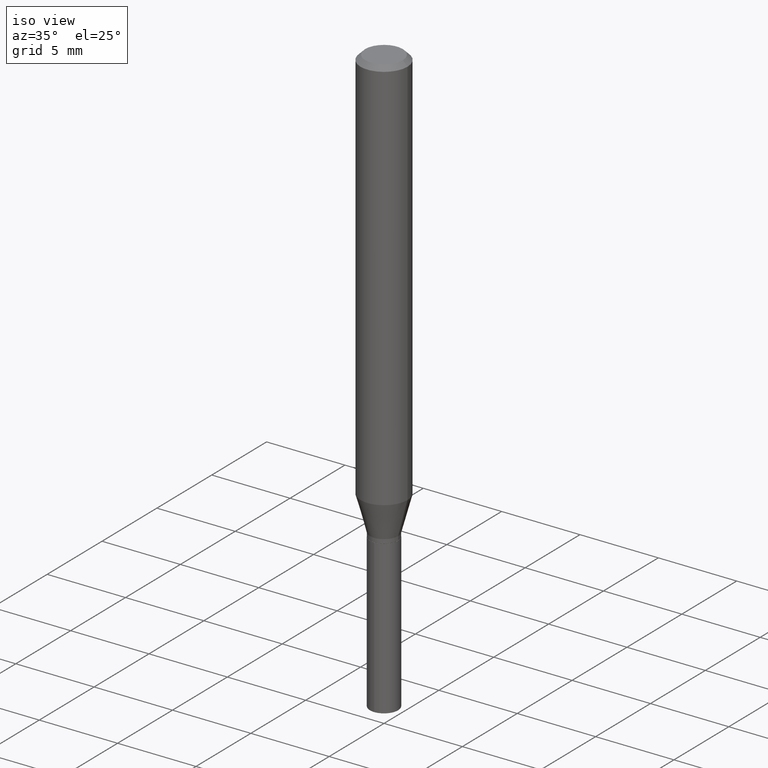
[diagram: clean part render]
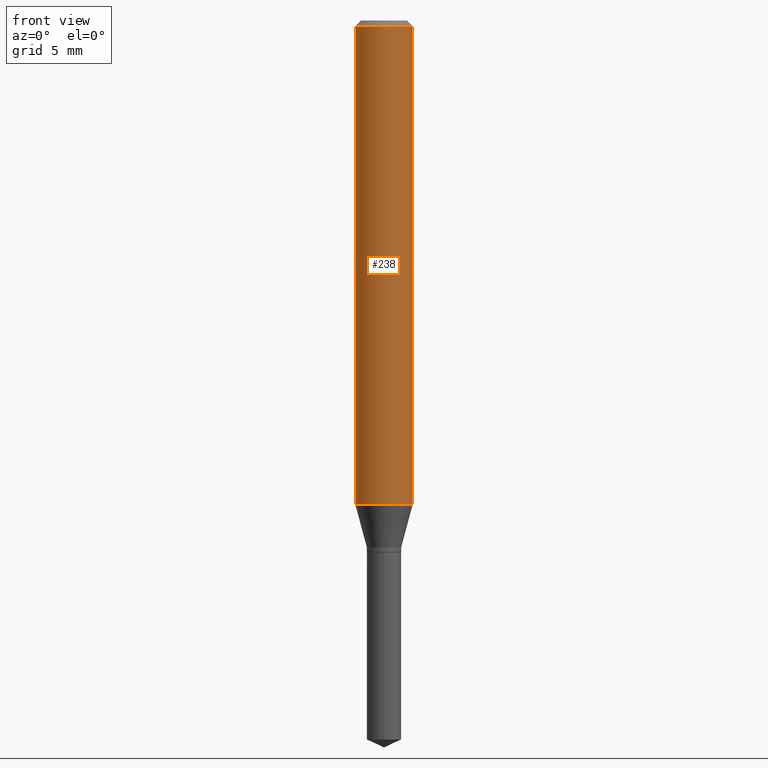
[diagram: tour spotlight — one face highlighted and labeled with its STEP entity id]
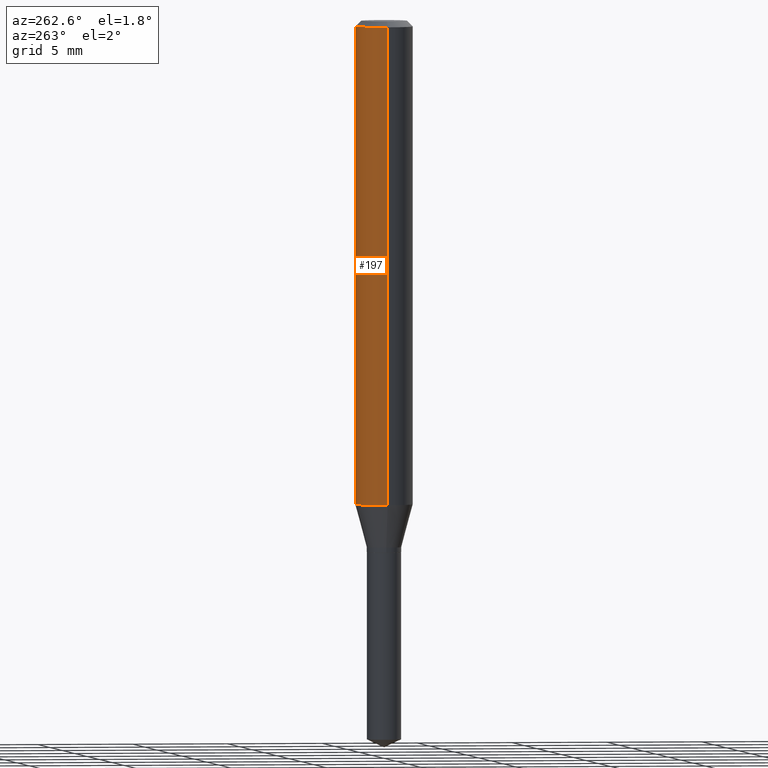
[diagram: tour spotlight — one face highlighted and labeled with its STEP entity id]
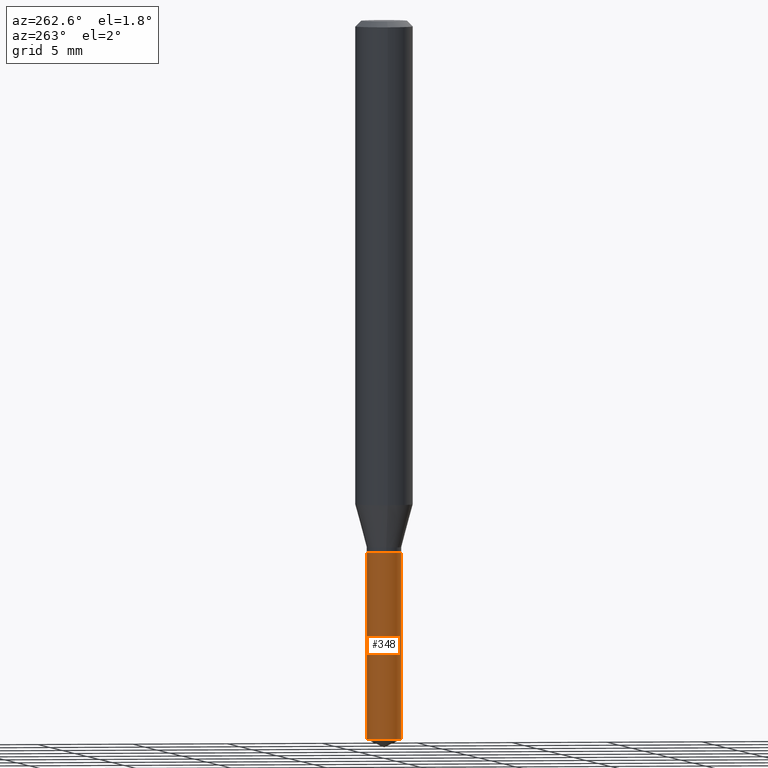
[diagram: tour spotlight — one face highlighted and labeled with its STEP entity id]
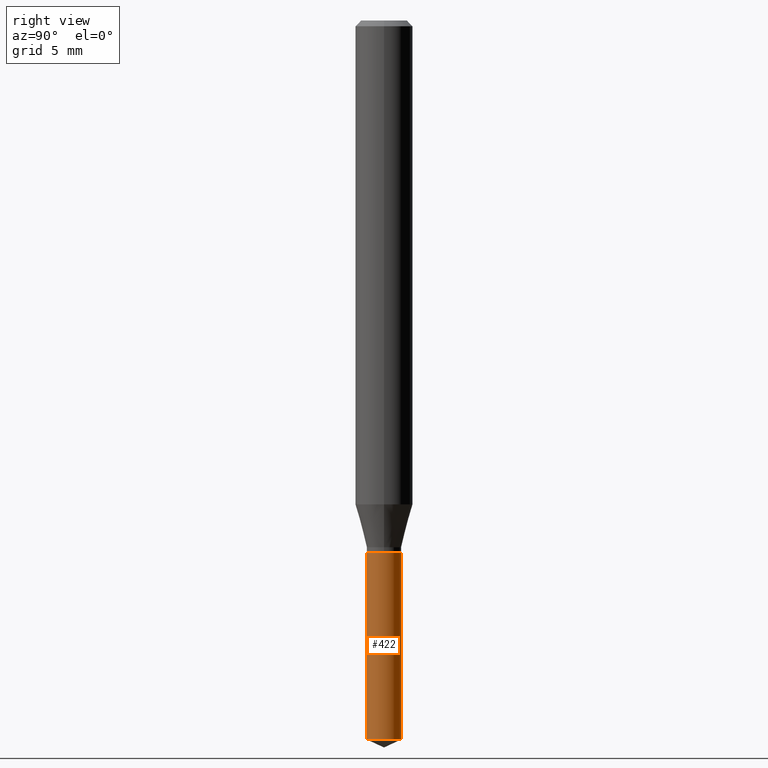
[diagram: tour spotlight — one face highlighted and labeled with its STEP entity id]
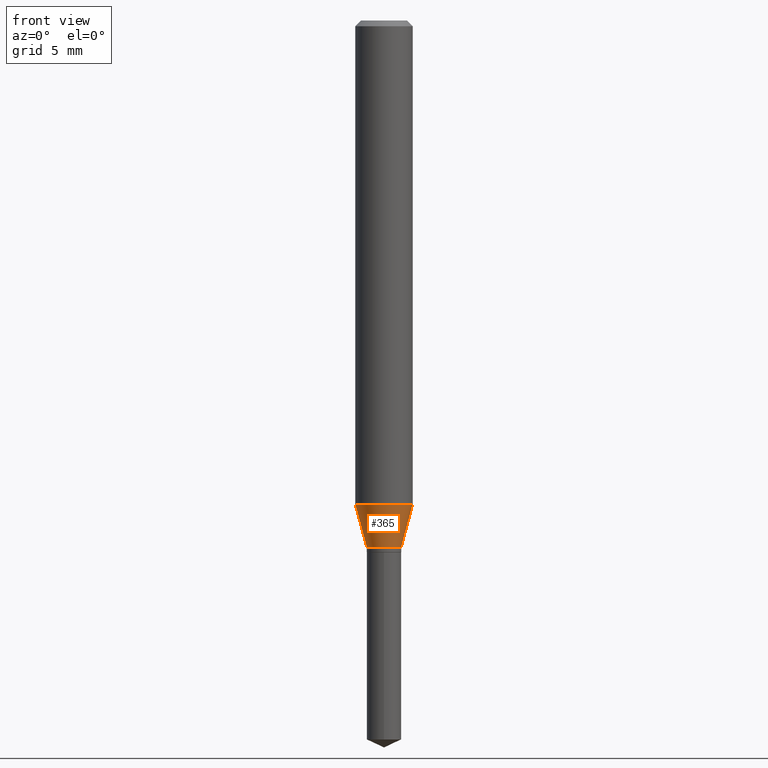
[diagram: tour spotlight — one face highlighted and labeled with its STEP entity id]
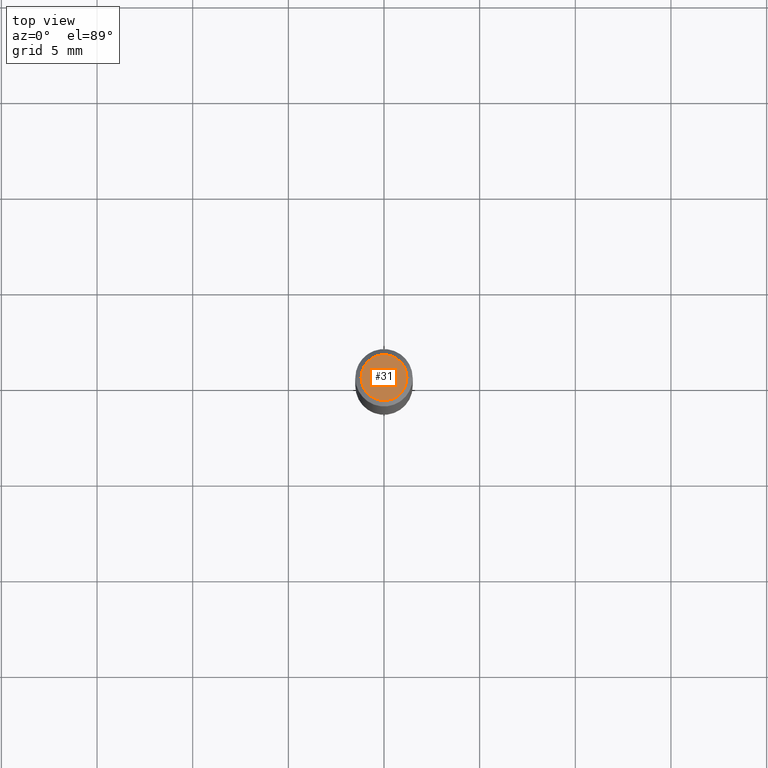
[diagram: tour spotlight — one face highlighted and labeled with its STEP entity id]
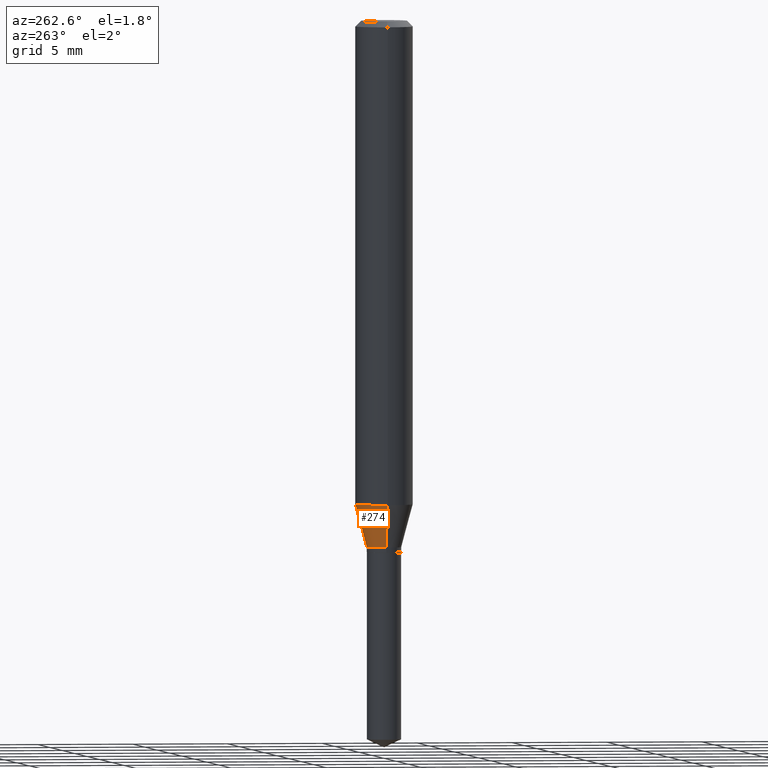
[diagram: tour spotlight — one face highlighted and labeled with its STEP entity id]
A machine part: a face-by-face anatomy tour. The part has 17 B-rep faces; the first image is the clean iso view, then the 7 largest visible faces are spotlighted one at a time (largest first), each with its STEP entity span.

Face 1 — front view, entity #238. In plain terms, the highlighted cylindrical surface (edge-blend (fillet) strip) has radius 1.4999 mm, axis along (-0, 0, 1).
Definition (entity closure, byte-faithful):
#7 = EDGE_CURVE ( 'NONE', #326, #285, #112, .T. ) ;
#38 = AXIS2_PLACEMENT_3D ( 'NONE', #455, #118, #305 ) ;
#47 = CIRCLE ( 'NONE', #121, 0.05905000000000011628 ) ;
#60 = AXIS2_PLACEMENT_3D ( 'NONE', #322, #159, #126 ) ;
#63 = CARTESIAN_POINT ( 'NONE',  ( 0.05905000000000006077, -4.123439461173744764E-16, 2.879382386107503023E-30 ) ) ;
#71 = CARTESIAN_POINT ( 'NONE',  ( -0.05905000000000006077, 4.195754854663395916E-16, -2.904631170795524694E-30 ) ) ;
#78 = DIRECTION ( 'NONE',  ( -2.445468806185136597E-29, 3.491481338843145583E-15, 1.000000000000000000 ) ) ;
#87 = CARTESIAN_POINT ( 'NONE',  ( -0.05905000000000011628, -3.057324034000050775E-15, -0.9958236009413741208 ) ) ;
#105 = DIRECTION ( 'NONE',  ( -2.445468806185136877E-29, 3.491481338843145188E-15, 1.000000000000000000 ) ) ;
#112 = LINE ( 'NONE', #71, #217 ) ;
#115 = VERTEX_POINT ( 'NONE', #295 ) ;
#117 = DIRECTION ( 'NONE',  ( -2.445468806185136877E-29, 3.491481338843145188E-15, 1.000000000000000000 ) ) ;
#118 = DIRECTION ( 'NONE',  ( -2.445468806185136597E-29, 3.491481338843145583E-15, 1.000000000000000000 ) ) ;
#121 = AXIS2_PLACEMENT_3D ( 'NONE', #207, #78, #184 ) ;
#126 = DIRECTION ( 'NONE',  ( 1.000000000000000000, -6.982962677686266711E-15, 4.876176775795935793E-29 ) ) ;
#133 = VECTOR ( 'NONE', #117, 39.37007874015748143 ) ;
#149 = VERTEX_POINT ( 'NONE', #473 ) ;
#159 = DIRECTION ( 'NONE',  ( -2.445468806185136597E-29, 3.491481338843145583E-15, 1.000000000000000000 ) ) ;
#170 = ORIENTED_EDGE ( 'NONE', *, *, #248, .T. ) ;
#175 = FACE_OUTER_BOUND ( 'NONE', #387, .T. ) ;
#184 = DIRECTION ( 'NONE',  ( 1.000000000000000000, -6.982962677686266711E-15, 0.000000000000000000 ) ) ;
#207 = CARTESIAN_POINT ( 'NONE',  ( 2.435255552565086005E-29, -3.476899519466391057E-15, -0.9958236009413741208 ) ) ;
#217 = VECTOR ( 'NONE', #105, 39.37007874015748143 ) ;
#238 = ADVANCED_FACE ( 'NONE', ( #175 ), #390, .T. ) ;
#248 = EDGE_CURVE ( 'NONE', #326, #115, #47, .T. ) ;
#250 = CIRCLE ( 'NONE', #38, 0.05904999999999999832 ) ;
#277 = EDGE_CURVE ( 'NONE', #285, #149, #250, .T. ) ;
#285 = VERTEX_POINT ( 'NONE', #420 ) ;
#295 = CARTESIAN_POINT ( 'NONE',  ( 0.05905000000000011628, -3.889243465583765977E-15, -0.9958236009413741208 ) ) ;
#305 = DIRECTION ( 'NONE',  ( 1.000000000000000000, -6.982962677686266711E-15, 0.000000000000000000 ) ) ;
#322 = CARTESIAN_POINT ( 'NONE',  ( 0.000000000000000000, 0.000000000000000000, 0.000000000000000000 ) ) ;
#326 = VERTEX_POINT ( 'NONE', #87 ) ;
#332 = LINE ( 'NONE', #63, #133 ) ;
#342 = ORIENTED_EDGE ( 'NONE', *, *, #277, .F. ) ;
#360 = ORIENTED_EDGE ( 'NONE', *, *, #7, .F. ) ;
#387 = EDGE_LOOP ( 'NONE', ( #360, #170, #405, #342 ) ) ;
#390 = CYLINDRICAL_SURFACE ( 'NONE', #60, 0.05905000000000006077 ) ;
#405 = ORIENTED_EDGE ( 'NONE', *, *, #415, .T. ) ;
#415 = EDGE_CURVE ( 'NONE', #115, #149, #332, .T. ) ;
#420 = CARTESIAN_POINT ( 'NONE',  ( -0.05904999999999999832, -1.339491471572724111E-15, -0.01181000000000007218 ) ) ;
#455 = CARTESIAN_POINT ( 'NONE',  ( 2.888098660104664204E-31, -4.123439461173780263E-17, -0.01181000000000007218 ) ) ;
#473 = CARTESIAN_POINT ( 'NONE',  ( 0.05904999999999999832, -4.535783407291118600E-16, -0.01181000000000007218 ) ) ;

Face 2 — auxiliary view, entity #197. In plain terms, the highlighted cylindrical surface (edge-blend (fillet) strip) has radius 1.4999 mm, axis along (-0, 0, 1).
Definition (entity closure, byte-faithful):
#7 = EDGE_CURVE ( 'NONE', #326, #285, #112, .T. ) ;
#16 = CARTESIAN_POINT ( 'NONE',  ( 2.888098660104664204E-31, -4.123439461173780263E-17, -0.01181000000000007218 ) ) ;
#36 = DIRECTION ( 'NONE',  ( 1.000000000000000000, -6.982962677686266711E-15, 0.000000000000000000 ) ) ;
#52 = CARTESIAN_POINT ( 'NONE',  ( 2.435255552565086005E-29, -3.476899519466391057E-15, -0.9958236009413741208 ) ) ;
#62 = CIRCLE ( 'NONE', #438, 0.05904999999999999832 ) ;
#63 = CARTESIAN_POINT ( 'NONE',  ( 0.05905000000000006077, -4.123439461173744764E-16, 2.879382386107503023E-30 ) ) ;
#71 = CARTESIAN_POINT ( 'NONE',  ( -0.05905000000000006077, 4.195754854663395916E-16, -2.904631170795524694E-30 ) ) ;
#87 = CARTESIAN_POINT ( 'NONE',  ( -0.05905000000000011628, -3.057324034000050775E-15, -0.9958236009413741208 ) ) ;
#100 = ORIENTED_EDGE ( 'NONE', *, *, #7, .T. ) ;
#105 = DIRECTION ( 'NONE',  ( -2.445468806185136877E-29, 3.491481338843145188E-15, 1.000000000000000000 ) ) ;
#112 = LINE ( 'NONE', #71, #217 ) ;
#115 = VERTEX_POINT ( 'NONE', #295 ) ;
#117 = DIRECTION ( 'NONE',  ( -2.445468806185136877E-29, 3.491481338843145188E-15, 1.000000000000000000 ) ) ;
#133 = VECTOR ( 'NONE', #117, 39.37007874015748143 ) ;
#145 = AXIS2_PLACEMENT_3D ( 'NONE', #363, #172, #247 ) ;
#146 = ORIENTED_EDGE ( 'NONE', *, *, #415, .F. ) ;
#149 = VERTEX_POINT ( 'NONE', #473 ) ;
#167 = DIRECTION ( 'NONE',  ( -2.445468806185136597E-29, 3.491481338843145583E-15, 1.000000000000000000 ) ) ;
#172 = DIRECTION ( 'NONE',  ( -2.445468806185136597E-29, 3.491481338843145583E-15, 1.000000000000000000 ) ) ;
#173 = ORIENTED_EDGE ( 'NONE', *, *, #456, .F. ) ;
#197 = ADVANCED_FACE ( 'NONE', ( #289 ), #281, .T. ) ;
#208 = AXIS2_PLACEMENT_3D ( 'NONE', #52, #442, #361 ) ;
#217 = VECTOR ( 'NONE', #105, 39.37007874015748143 ) ;
#220 = EDGE_CURVE ( 'NONE', #115, #326, #428, .T. ) ;
#236 = ORIENTED_EDGE ( 'NONE', *, *, #220, .T. ) ;
#247 = DIRECTION ( 'NONE',  ( 1.000000000000000000, -6.982962677686266711E-15, 4.876176775795935793E-29 ) ) ;
#281 = CYLINDRICAL_SURFACE ( 'NONE', #145, 0.05905000000000006077 ) ;
#285 = VERTEX_POINT ( 'NONE', #420 ) ;
#289 = FACE_OUTER_BOUND ( 'NONE', #448, .T. ) ;
#295 = CARTESIAN_POINT ( 'NONE',  ( 0.05905000000000011628, -3.889243465583765977E-15, -0.9958236009413741208 ) ) ;
#326 = VERTEX_POINT ( 'NONE', #87 ) ;
#332 = LINE ( 'NONE', #63, #133 ) ;
#361 = DIRECTION ( 'NONE',  ( 1.000000000000000000, -6.982962677686266711E-15, 0.000000000000000000 ) ) ;
#363 = CARTESIAN_POINT ( 'NONE',  ( 0.000000000000000000, 0.000000000000000000, 0.000000000000000000 ) ) ;
#415 = EDGE_CURVE ( 'NONE', #115, #149, #332, .T. ) ;
#420 = CARTESIAN_POINT ( 'NONE',  ( -0.05904999999999999832, -1.339491471572724111E-15, -0.01181000000000007218 ) ) ;
#428 = CIRCLE ( 'NONE', #208, 0.05905000000000011628 ) ;
#438 = AXIS2_PLACEMENT_3D ( 'NONE', #16, #167, #36 ) ;
#442 = DIRECTION ( 'NONE',  ( -2.445468806185136597E-29, 3.491481338843145583E-15, 1.000000000000000000 ) ) ;
#448 = EDGE_LOOP ( 'NONE', ( #236, #100, #173, #146 ) ) ;
#456 = EDGE_CURVE ( 'NONE', #149, #285, #62, .T. ) ;
#473 = CARTESIAN_POINT ( 'NONE',  ( 0.05904999999999999832, -4.535783407291118600E-16, -0.01181000000000007218 ) ) ;

Face 3 — auxiliary view, entity #348. In plain terms, the highlighted cylindrical surface (edge-blend (fillet) strip) has radius 0.9004 mm, axis along (-0, 0, 1).
Definition (entity closure, byte-faithful):
#53 = DIRECTION ( 'NONE',  ( -2.445470214571802116E-29, 3.491479321953280158E-15, 1.000000000000000000 ) ) ;
#54 = VERTEX_POINT ( 'NONE', #336 ) ;
#61 = LINE ( 'NONE', #328, #139 ) ;
#75 = CIRCLE ( 'NONE', #116, 0.03545000000000000234 ) ;
#86 = CARTESIAN_POINT ( 'NONE',  ( 2.518873998269915736E-16, 0.03544999999999481899, -1.479569393518405329 ) ) ;
#116 = AXIS2_PLACEMENT_3D ( 'NONE', #161, #317, #230 ) ;
#139 = VECTOR ( 'NONE', #324, 39.37007874015748143 ) ;
#161 = CARTESIAN_POINT ( 'NONE',  ( 2.676565608369631794E-29, -3.821426325363822773E-15, -1.094499999999999806 ) ) ;
#171 = AXIS2_PLACEMENT_3D ( 'NONE', #306, #425, #394 ) ;
#187 = LINE ( 'NONE', #226, #465 ) ;
#188 = EDGE_CURVE ( 'NONE', #273, #54, #61, .T. ) ;
#199 = DIRECTION ( 'NONE',  ( -6.982962677686265922E-15, -1.000000000000000000, 0.000000000000000000 ) ) ;
#222 = CARTESIAN_POINT ( 'NONE',  ( -2.475460269239418917E-16, -0.03545000000000515794, -1.479569393518405329 ) ) ;
#226 = CARTESIAN_POINT ( 'NONE',  ( 2.518873998269822552E-16, 0.03544999999999617901, -1.094500000000000028 ) ) ;
#230 = DIRECTION ( 'NONE',  ( -6.982962677686265922E-15, -1.000000000000000000, 3.853100132107564390E-15 ) ) ;
#262 = AXIS2_PLACEMENT_3D ( 'NONE', #484, #53, #199 ) ;
#266 = EDGE_LOOP ( 'NONE', ( #287, #323, #375, #362 ) ) ;
#273 = VERTEX_POINT ( 'NONE', #222 ) ;
#287 = ORIENTED_EDGE ( 'NONE', *, *, #485, .F. ) ;
#306 = CARTESIAN_POINT ( 'NONE',  ( 2.676565608369631794E-29, -3.821426325363822773E-15, -1.094499999999999806 ) ) ;
#312 = FACE_OUTER_BOUND ( 'NONE', #266, .T. ) ;
#317 = DIRECTION ( 'NONE',  ( -2.445470214571802116E-29, 3.491479321953280158E-15, 1.000000000000000000 ) ) ;
#323 = ORIENTED_EDGE ( 'NONE', *, *, #445, .T. ) ;
#324 = DIRECTION ( 'NONE',  ( -2.445470214571802396E-29, 3.491479321953280158E-15, 1.000000000000000000 ) ) ;
#328 = CARTESIAN_POINT ( 'NONE',  ( -2.475460269239513581E-16, -0.03545000000000382567, -1.094499999999999806 ) ) ;
#329 = EDGE_CURVE ( 'NONE', #434, #54, #75, .T. ) ;
#331 = CARTESIAN_POINT ( 'NONE',  ( 2.518873998269917215E-16, 0.03544999999999617901, -1.094500000000000028 ) ) ;
#336 = CARTESIAN_POINT ( 'NONE',  ( -2.475460269239513581E-16, -0.03545000000000382567, -1.094499999999999806 ) ) ;
#348 = ADVANCED_FACE ( 'NONE', ( #312 ), #459, .T. ) ;
#362 = ORIENTED_EDGE ( 'NONE', *, *, #329, .F. ) ;
#375 = ORIENTED_EDGE ( 'NONE', *, *, #188, .T. ) ;
#394 = DIRECTION ( 'NONE',  ( -6.982962677686265922E-15, -1.000000000000000000, 3.853100132107564390E-15 ) ) ;
#425 = DIRECTION ( 'NONE',  ( -2.445470214571802116E-29, 3.491479321953280158E-15, 1.000000000000000000 ) ) ;
#434 = VERTEX_POINT ( 'NONE', #331 ) ;
#445 = EDGE_CURVE ( 'NONE', #463, #273, #479, .T. ) ;
#450 = DIRECTION ( 'NONE',  ( -2.445470214571802396E-29, 3.491479321953280158E-15, 1.000000000000000000 ) ) ;
#459 = CYLINDRICAL_SURFACE ( 'NONE', #171, 0.03545000000000000234 ) ;
#463 = VERTEX_POINT ( 'NONE', #86 ) ;
#465 = VECTOR ( 'NONE', #450, 39.37007874015748143 ) ;
#479 = CIRCLE ( 'NONE', #262, 0.03545000000000000234 ) ;
#484 = CARTESIAN_POINT ( 'NONE',  ( 3.618241340762121039E-29, -5.165888150350425771E-15, -1.479569393518405329 ) ) ;
#485 = EDGE_CURVE ( 'NONE', #463, #434, #187, .T. ) ;

Face 4 — right view, entity #422. In plain terms, the highlighted cylindrical surface (edge-blend (fillet) strip) has radius 0.9004 mm, axis along (-0, 0, 1).
Definition (entity closure, byte-faithful):
#9 = AXIS2_PLACEMENT_3D ( 'NONE', #26, #404, #441 ) ;
#26 = CARTESIAN_POINT ( 'NONE',  ( 3.618241340762121039E-29, -5.165888150350425771E-15, -1.479569393518405329 ) ) ;
#42 = CARTESIAN_POINT ( 'NONE',  ( 2.676565608369631794E-29, -3.821426325363822773E-15, -1.094499999999999806 ) ) ;
#46 = EDGE_CURVE ( 'NONE', #273, #463, #464, .T. ) ;
#54 = VERTEX_POINT ( 'NONE', #336 ) ;
#61 = LINE ( 'NONE', #328, #139 ) ;
#85 = AXIS2_PLACEMENT_3D ( 'NONE', #137, #264, #414 ) ;
#86 = CARTESIAN_POINT ( 'NONE',  ( 2.518873998269915736E-16, 0.03544999999999481899, -1.479569393518405329 ) ) ;
#137 = CARTESIAN_POINT ( 'NONE',  ( 2.676565608369631794E-29, -3.821426325363822773E-15, -1.094499999999999806 ) ) ;
#139 = VECTOR ( 'NONE', #324, 39.37007874015748143 ) ;
#154 = DIRECTION ( 'NONE',  ( -2.445470214571802116E-29, 3.491479321953280158E-15, 1.000000000000000000 ) ) ;
#156 = DIRECTION ( 'NONE',  ( -6.982962677686265922E-15, -1.000000000000000000, 3.853100132107564390E-15 ) ) ;
#187 = LINE ( 'NONE', #226, #465 ) ;
#188 = EDGE_CURVE ( 'NONE', #273, #54, #61, .T. ) ;
#215 = CYLINDRICAL_SURFACE ( 'NONE', #382, 0.03545000000000000234 ) ;
#222 = CARTESIAN_POINT ( 'NONE',  ( -2.475460269239418917E-16, -0.03545000000000515794, -1.479569393518405329 ) ) ;
#224 = ORIENTED_EDGE ( 'NONE', *, *, #188, .F. ) ;
#226 = CARTESIAN_POINT ( 'NONE',  ( 2.518873998269822552E-16, 0.03544999999999617901, -1.094500000000000028 ) ) ;
#249 = FACE_OUTER_BOUND ( 'NONE', #480, .T. ) ;
#264 = DIRECTION ( 'NONE',  ( -2.445470214571802116E-29, 3.491479321953280158E-15, 1.000000000000000000 ) ) ;
#273 = VERTEX_POINT ( 'NONE', #222 ) ;
#324 = DIRECTION ( 'NONE',  ( -2.445470214571802396E-29, 3.491479321953280158E-15, 1.000000000000000000 ) ) ;
#328 = CARTESIAN_POINT ( 'NONE',  ( -2.475460269239513581E-16, -0.03545000000000382567, -1.094499999999999806 ) ) ;
#331 = CARTESIAN_POINT ( 'NONE',  ( 2.518873998269917215E-16, 0.03544999999999617901, -1.094500000000000028 ) ) ;
#336 = CARTESIAN_POINT ( 'NONE',  ( -2.475460269239513581E-16, -0.03545000000000382567, -1.094499999999999806 ) ) ;
#347 = EDGE_CURVE ( 'NONE', #54, #434, #437, .T. ) ;
#358 = ORIENTED_EDGE ( 'NONE', *, *, #347, .F. ) ;
#382 = AXIS2_PLACEMENT_3D ( 'NONE', #42, #154, #156 ) ;
#404 = DIRECTION ( 'NONE',  ( -2.445470214571802116E-29, 3.491479321953280158E-15, 1.000000000000000000 ) ) ;
#414 = DIRECTION ( 'NONE',  ( -6.982962677686265922E-15, -1.000000000000000000, 3.853100132107564390E-15 ) ) ;
#416 = ORIENTED_EDGE ( 'NONE', *, *, #46, .T. ) ;
#422 = ADVANCED_FACE ( 'NONE', ( #249 ), #215, .T. ) ;
#434 = VERTEX_POINT ( 'NONE', #331 ) ;
#437 = CIRCLE ( 'NONE', #85, 0.03545000000000000234 ) ;
#441 = DIRECTION ( 'NONE',  ( -6.982962677686265922E-15, -1.000000000000000000, 0.000000000000000000 ) ) ;
#450 = DIRECTION ( 'NONE',  ( -2.445470214571802396E-29, 3.491479321953280158E-15, 1.000000000000000000 ) ) ;
#463 = VERTEX_POINT ( 'NONE', #86 ) ;
#464 = CIRCLE ( 'NONE', #9, 0.03545000000000000234 ) ;
#465 = VECTOR ( 'NONE', #450, 39.37007874015748143 ) ;
#467 = ORIENTED_EDGE ( 'NONE', *, *, #485, .T. ) ;
#480 = EDGE_LOOP ( 'NONE', ( #416, #467, #358, #224 ) ) ;
#485 = EDGE_CURVE ( 'NONE', #463, #434, #187, .T. ) ;

Face 5 — front view, entity #365. In plain terms, the highlighted conical surface has half-angle 15 deg.
Definition (entity closure, byte-faithful):
#3 = CONICAL_SURFACE ( 'NONE', #155, 0.03545000000000000234, 0.2617993877991498519 ) ;
#17 = FACE_OUTER_BOUND ( 'NONE', #138, .T. ) ;
#23 = ORIENTED_EDGE ( 'NONE', *, *, #399, .F. ) ;
#37 = CARTESIAN_POINT ( 'NONE',  ( 0.03545000000000000234, -4.031962650096063203E-15, -1.083899999999999864 ) ) ;
#47 = CIRCLE ( 'NONE', #121, 0.05905000000000011628 ) ;
#70 = DIRECTION ( 'NONE',  ( -0.2588190451025211281, 5.211531920934547886E-15, 0.9659258262890679791 ) ) ;
#78 = DIRECTION ( 'NONE',  ( -2.445468806185136597E-29, 3.491481338843145583E-15, 1.000000000000000000 ) ) ;
#87 = CARTESIAN_POINT ( 'NONE',  ( -0.05905000000000011628, -3.057324034000050775E-15, -0.9958236009413741208 ) ) ;
#91 = ORIENTED_EDGE ( 'NONE', *, *, #429, .T. ) ;
#109 = EDGE_CURVE ( 'NONE', #244, #471, #398, .T. ) ;
#115 = VERTEX_POINT ( 'NONE', #295 ) ;
#121 = AXIS2_PLACEMENT_3D ( 'NONE', #207, #78, #184 ) ;
#138 = EDGE_LOOP ( 'NONE', ( #23, #255, #91, #488 ) ) ;
#140 = DIRECTION ( 'NONE',  ( 1.000000000000000000, -6.982962677686268288E-15, 0.000000000000000000 ) ) ;
#155 = AXIS2_PLACEMENT_3D ( 'NONE', #469, #240, #284 ) ;
#169 = AXIS2_PLACEMENT_3D ( 'NONE', #214, #486, #140 ) ;
#184 = DIRECTION ( 'NONE',  ( 1.000000000000000000, -6.982962677686266711E-15, 0.000000000000000000 ) ) ;
#207 = CARTESIAN_POINT ( 'NONE',  ( 2.435255552565086005E-29, -3.476899519466391057E-15, -0.9958236009413741208 ) ) ;
#214 = CARTESIAN_POINT ( 'NONE',  ( 2.650643639024069224E-29, -3.784416623172084531E-15, -1.083899999999999864 ) ) ;
#240 = DIRECTION ( 'NONE',  ( -2.445468806185136597E-29, 3.491481338843145583E-15, 1.000000000000000000 ) ) ;
#244 = VERTEX_POINT ( 'NONE', #276 ) ;
#248 = EDGE_CURVE ( 'NONE', #326, #115, #47, .T. ) ;
#255 = ORIENTED_EDGE ( 'NONE', *, *, #109, .T. ) ;
#256 = CARTESIAN_POINT ( 'NONE',  ( -0.03545000000000000234, -3.532529223345129146E-15, -1.083899999999999864 ) ) ;
#276 = CARTESIAN_POINT ( 'NONE',  ( -0.03545000000000000234, -3.550161204106286727E-15, -1.083899999999999864 ) ) ;
#284 = DIRECTION ( 'NONE',  ( 1.000000000000000000, -6.982962677686268288E-15, 0.000000000000000000 ) ) ;
#294 = LINE ( 'NONE', #256, #311 ) ;
#295 = CARTESIAN_POINT ( 'NONE',  ( 0.05905000000000011628, -3.889243465583765977E-15, -0.9958236009413741208 ) ) ;
#311 = VECTOR ( 'NONE', #70, 39.37007874015748854 ) ;
#326 = VERTEX_POINT ( 'NONE', #87 ) ;
#365 = ADVANCED_FACE ( 'NONE', ( #17 ), #3, .T. ) ;
#398 = CIRCLE ( 'NONE', #169, 0.03545000000000000234 ) ;
#399 = EDGE_CURVE ( 'NONE', #244, #326, #294, .T. ) ;
#403 = CARTESIAN_POINT ( 'NONE',  ( 0.03545000000000000234, -4.031962650096063203E-15, -1.083899999999999864 ) ) ;
#412 = DIRECTION ( 'NONE',  ( 0.2588190451025211281, 1.565188264969622954E-15, 0.9659258262890679791 ) ) ;
#419 = LINE ( 'NONE', #403, #453 ) ;
#429 = EDGE_CURVE ( 'NONE', #471, #115, #419, .T. ) ;
#453 = VECTOR ( 'NONE', #412, 39.37007874015748854 ) ;
#469 = CARTESIAN_POINT ( 'NONE',  ( 2.650643639024069224E-29, -3.784416623172084531E-15, -1.083899999999999864 ) ) ;
#471 = VERTEX_POINT ( 'NONE', #37 ) ;
#486 = DIRECTION ( 'NONE',  ( -2.445468806185136597E-29, 3.491481338843145583E-15, 1.000000000000000000 ) ) ;
#488 = ORIENTED_EDGE ( 'NONE', *, *, #248, .F. ) ;

Face 6 — top view, entity #31. In plain terms, the highlighted planar face has unit normal (0, -0, -1).
Definition (entity closure, byte-faithful):
#13 = VERTEX_POINT ( 'NONE', #113 ) ;
#29 = CARTESIAN_POINT ( 'NONE',  ( 8.265746106709734507E-48, -1.180129479067563789E-33, -3.380025165646692144E-19 ) ) ;
#30 = CARTESIAN_POINT ( 'NONE',  ( 4.132873053354867254E-48, -5.900647395337818946E-34, -1.690012582823346072E-19 ) ) ;
#31 = ADVANCED_FACE ( 'NONE', ( #443 ), #251, .F. ) ;
#55 = CARTESIAN_POINT ( 'NONE',  ( 0.04724000000000000421, -3.852183633974369345E-16, -3.380025165621689721E-19 ) ) ;
#65 = DIRECTION ( 'NONE',  ( -1.000000000000000000, 6.982962677686265922E-15, -4.876176775795935793E-29 ) ) ;
#113 = CARTESIAN_POINT ( 'NONE',  ( -0.04724000000000000421, 3.504923541997677355E-16, -3.380025165670481712E-19 ) ) ;
#122 = EDGE_CURVE ( 'NONE', #127, #13, #356, .T. ) ;
#127 = VERTEX_POINT ( 'NONE', #55 ) ;
#142 = DIRECTION ( 'NONE',  ( -2.445468806185136597E-29, 3.491481338843145583E-15, 1.000000000000000000 ) ) ;
#157 = DIRECTION ( 'NONE',  ( 1.000000000000000000, -6.982962677686266711E-15, 4.876185090822587894E-29 ) ) ;
#174 = ORIENTED_EDGE ( 'NONE', *, *, #385, .T. ) ;
#178 = DIRECTION ( 'NONE',  ( -2.445468806185136597E-29, 3.491481338843145583E-15, 1.000000000000000000 ) ) ;
#191 = AXIS2_PLACEMENT_3D ( 'NONE', #29, #178, #334 ) ;
#232 = AXIS2_PLACEMENT_3D ( 'NONE', #30, #401, #65 ) ;
#246 = EDGE_LOOP ( 'NONE', ( #174, #389 ) ) ;
#251 = PLANE ( 'NONE',  #232 ) ;
#269 = AXIS2_PLACEMENT_3D ( 'NONE', #340, #142, #157 ) ;
#334 = DIRECTION ( 'NONE',  ( 1.000000000000000000, -6.982962677686266711E-15, 4.876185090822587894E-29 ) ) ;
#340 = CARTESIAN_POINT ( 'NONE',  ( 8.265746106709734507E-48, -1.180129479067563789E-33, -3.380025165646692144E-19 ) ) ;
#356 = CIRCLE ( 'NONE', #269, 0.04724000000000000421 ) ;
#385 = EDGE_CURVE ( 'NONE', #13, #127, #411, .T. ) ;
#389 = ORIENTED_EDGE ( 'NONE', *, *, #122, .T. ) ;
#401 = DIRECTION ( 'NONE',  ( 2.438088387897960049E-29, -3.491481338843145188E-15, -1.000000000000000000 ) ) ;
#411 = CIRCLE ( 'NONE', #191, 0.04724000000000000421 ) ;
#443 = FACE_OUTER_BOUND ( 'NONE', #246, .T. ) ;

Face 7 — auxiliary view, entity #274. In plain terms, the highlighted conical surface has half-angle 15 deg.
Definition (entity closure, byte-faithful):
#24 = DIRECTION ( 'NONE',  ( 1.000000000000000000, -6.982962677686268288E-15, 0.000000000000000000 ) ) ;
#35 = ORIENTED_EDGE ( 'NONE', *, *, #433, .T. ) ;
#37 = CARTESIAN_POINT ( 'NONE',  ( 0.03545000000000000234, -4.031962650096063203E-15, -1.083899999999999864 ) ) ;
#52 = CARTESIAN_POINT ( 'NONE',  ( 2.435255552565086005E-29, -3.476899519466391057E-15, -0.9958236009413741208 ) ) ;
#70 = DIRECTION ( 'NONE',  ( -0.2588190451025211281, 5.211531920934547886E-15, 0.9659258262890679791 ) ) ;
#72 = CARTESIAN_POINT ( 'NONE',  ( 2.650643639024069224E-29, -3.784416623172084531E-15, -1.083899999999999864 ) ) ;
#80 = EDGE_LOOP ( 'NONE', ( #35, #476, #263, #355 ) ) ;
#87 = CARTESIAN_POINT ( 'NONE',  ( -0.05905000000000011628, -3.057324034000050775E-15, -0.9958236009413741208 ) ) ;
#90 = CIRCLE ( 'NONE', #458, 0.03545000000000000234 ) ;
#96 = CONICAL_SURFACE ( 'NONE', #372, 0.03545000000000000234, 0.2617993877991498519 ) ;
#110 = DIRECTION ( 'NONE',  ( -2.445468806185136597E-29, 3.491481338843145583E-15, 1.000000000000000000 ) ) ;
#115 = VERTEX_POINT ( 'NONE', #295 ) ;
#208 = AXIS2_PLACEMENT_3D ( 'NONE', #52, #442, #361 ) ;
#220 = EDGE_CURVE ( 'NONE', #115, #326, #428, .T. ) ;
#244 = VERTEX_POINT ( 'NONE', #276 ) ;
#256 = CARTESIAN_POINT ( 'NONE',  ( -0.03545000000000000234, -3.532529223345129146E-15, -1.083899999999999864 ) ) ;
#263 = ORIENTED_EDGE ( 'NONE', *, *, #220, .F. ) ;
#274 = ADVANCED_FACE ( 'NONE', ( #490 ), #96, .T. ) ;
#276 = CARTESIAN_POINT ( 'NONE',  ( -0.03545000000000000234, -3.550161204106286727E-15, -1.083899999999999864 ) ) ;
#294 = LINE ( 'NONE', #256, #311 ) ;
#295 = CARTESIAN_POINT ( 'NONE',  ( 0.05905000000000011628, -3.889243465583765977E-15, -0.9958236009413741208 ) ) ;
#301 = CARTESIAN_POINT ( 'NONE',  ( 2.650643639024069224E-29, -3.784416623172084531E-15, -1.083899999999999864 ) ) ;
#311 = VECTOR ( 'NONE', #70, 39.37007874015748854 ) ;
#326 = VERTEX_POINT ( 'NONE', #87 ) ;
#355 = ORIENTED_EDGE ( 'NONE', *, *, #429, .F. ) ;
#361 = DIRECTION ( 'NONE',  ( 1.000000000000000000, -6.982962677686266711E-15, 0.000000000000000000 ) ) ;
#372 = AXIS2_PLACEMENT_3D ( 'NONE', #301, #374, #457 ) ;
#374 = DIRECTION ( 'NONE',  ( -2.445468806185136597E-29, 3.491481338843145583E-15, 1.000000000000000000 ) ) ;
#399 = EDGE_CURVE ( 'NONE', #244, #326, #294, .T. ) ;
#403 = CARTESIAN_POINT ( 'NONE',  ( 0.03545000000000000234, -4.031962650096063203E-15, -1.083899999999999864 ) ) ;
#412 = DIRECTION ( 'NONE',  ( 0.2588190451025211281, 1.565188264969622954E-15, 0.9659258262890679791 ) ) ;
#419 = LINE ( 'NONE', #403, #453 ) ;
#428 = CIRCLE ( 'NONE', #208, 0.05905000000000011628 ) ;
#429 = EDGE_CURVE ( 'NONE', #471, #115, #419, .T. ) ;
#433 = EDGE_CURVE ( 'NONE', #471, #244, #90, .T. ) ;
#442 = DIRECTION ( 'NONE',  ( -2.445468806185136597E-29, 3.491481338843145583E-15, 1.000000000000000000 ) ) ;
#453 = VECTOR ( 'NONE', #412, 39.37007874015748854 ) ;
#457 = DIRECTION ( 'NONE',  ( 1.000000000000000000, -6.982962677686268288E-15, 0.000000000000000000 ) ) ;
#458 = AXIS2_PLACEMENT_3D ( 'NONE', #72, #110, #24 ) ;
#471 = VERTEX_POINT ( 'NONE', #37 ) ;
#476 = ORIENTED_EDGE ( 'NONE', *, *, #399, .T. ) ;
#490 = FACE_OUTER_BOUND ( 'NONE', #80, .T. ) ;